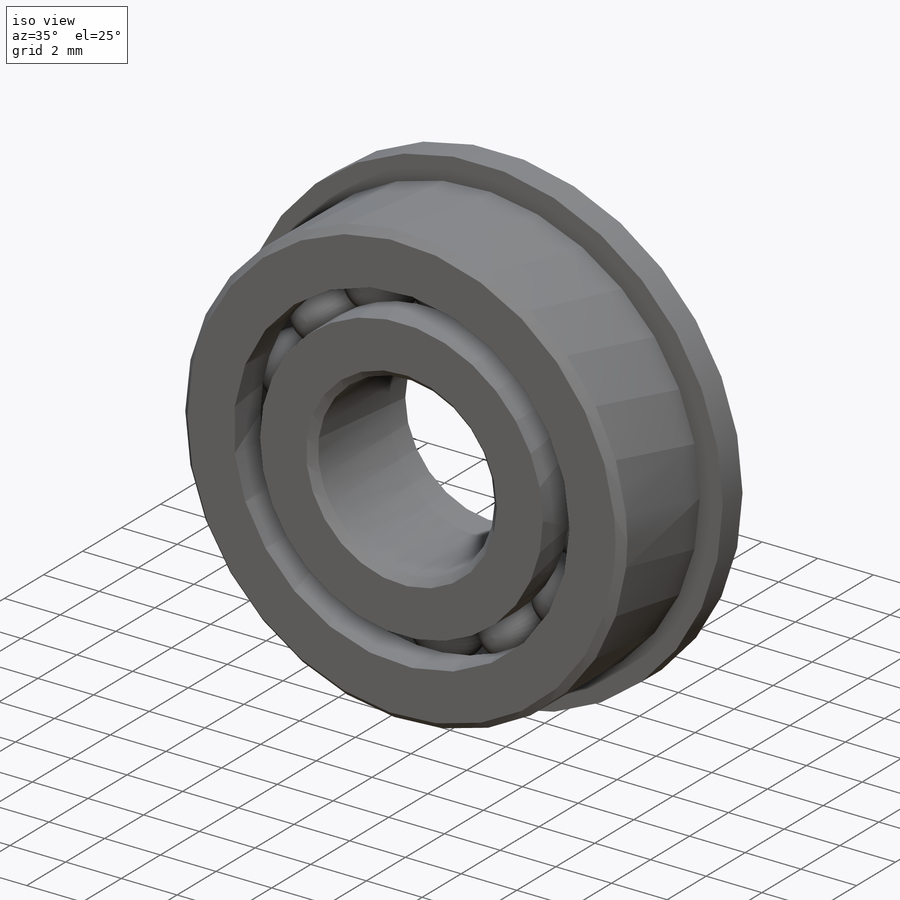
[diagram: iso view]
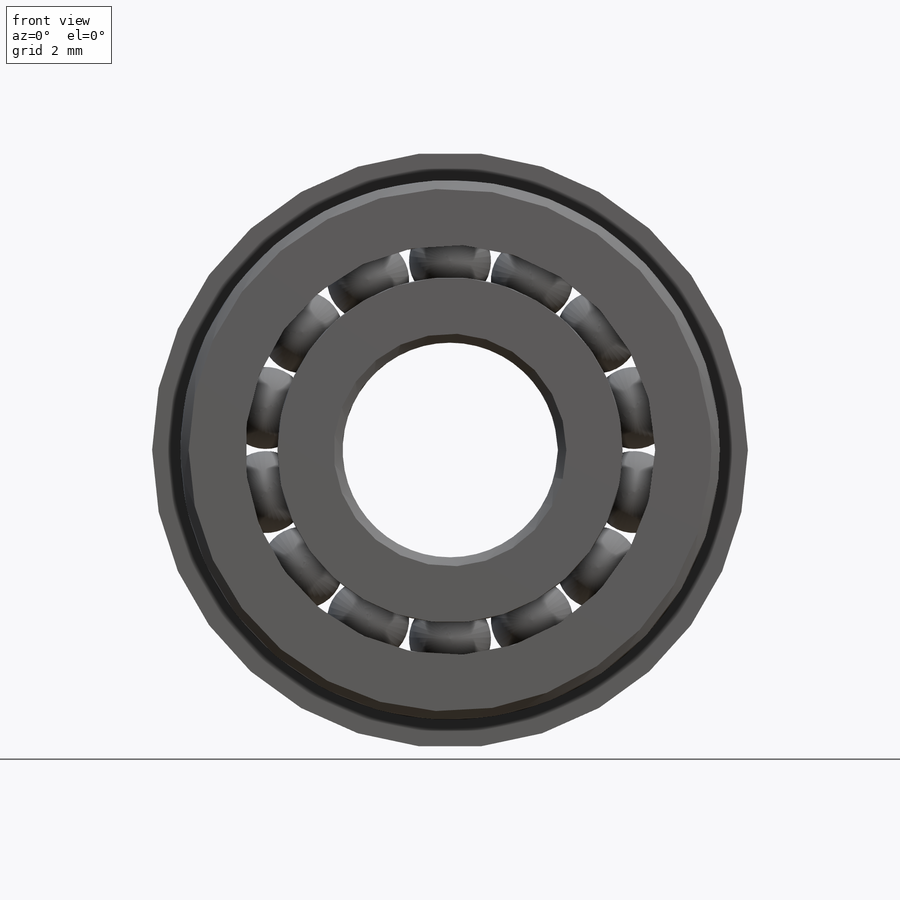
[diagram: front view]
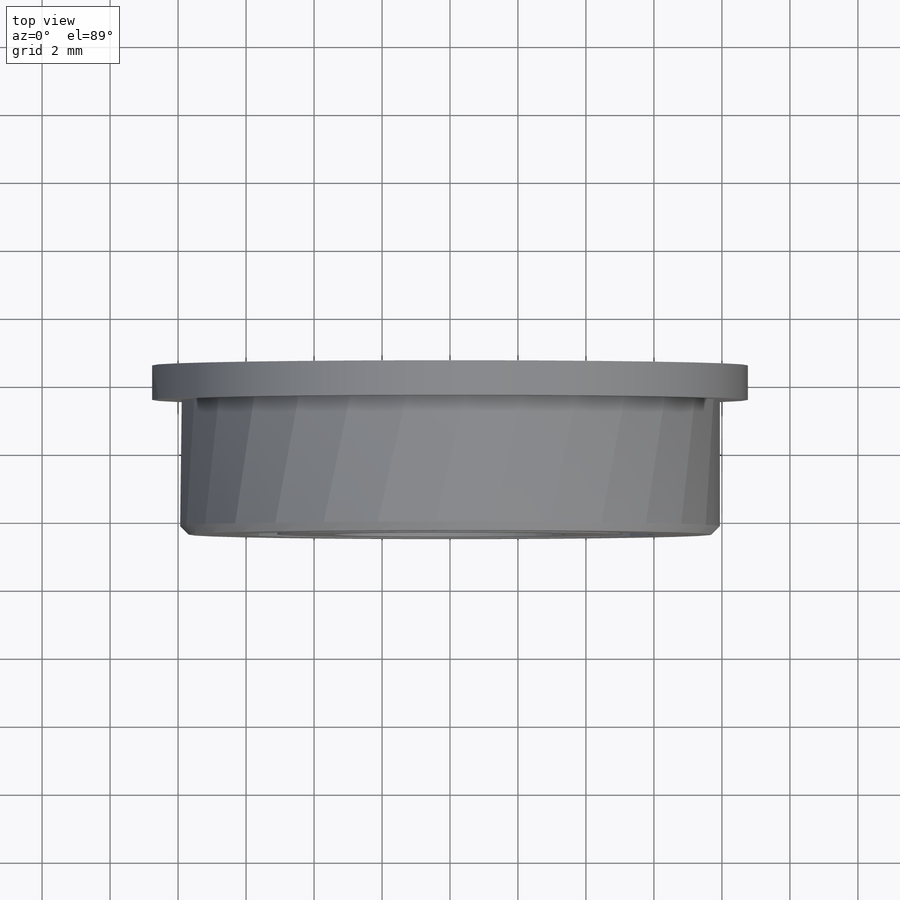
[diagram: top view]
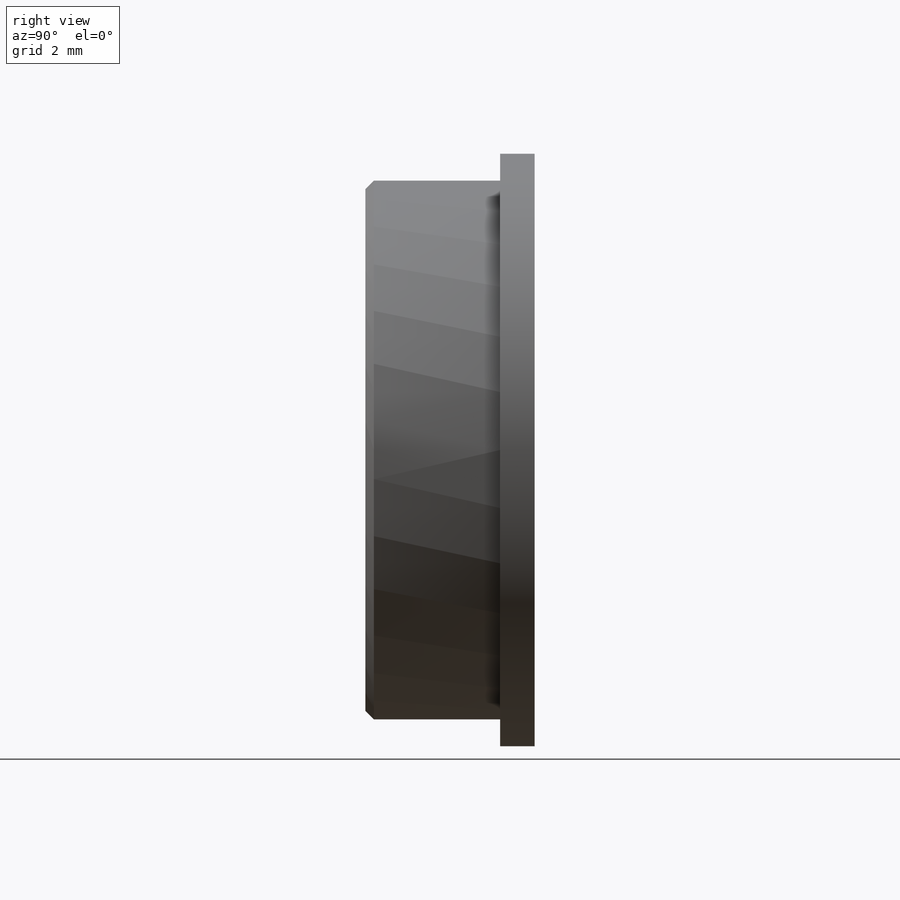
[diagram: right view]
SOLIDWORKS PART (.sldprt)
format: sldprt  version: not decoded by parser v0  size: 913,920 bytes
history: native  units: mm
features: sketch x4, revolve x4, material x1, pattern_circular x1 (+12 scaffold rows collapsed)
feature tree (22):
  scaffold x12  (default folders/planes/origin — collapsed)
  material  "AISI 1020"
  sketch  "Sketch1"  dims[c1.D3=~8.087863mm c1.Width=12.7mm c1.OD=15.875mm c1.D1=~8.793076mm c2.D1=45.0deg c2.D2=~0.24892mm c2.Shaft Dia=6.35mm c2.D3=~2.212622mm c2.D4=~0.478971mm c2.Total Wd=14.2875mm c2.Width=4.9784mm]
  revolve  "Revolve1"  Angle=360deg
  sketch  "Sketch3"
  revolve  "Revolve3"  Angle=360deg
  sketch  "Sketch5"  dims[Th=1.016mm Flange OD=17.526mm]
  revolve  "Revolve5"  Angle=360deg
  sketch  "Sketch4"
  revolve  "Revolve4"  Angle=360deg
  pattern_circular  "CirPattern1"  Count=14 Angle=25.714286deg Balls=14
decode coverage: 7 of 9 modeling features carry decoded parameters
note: ~ marks probable driven/reference dimensions
note: suppression state not decoded; provenance and decode notes live in map.json
